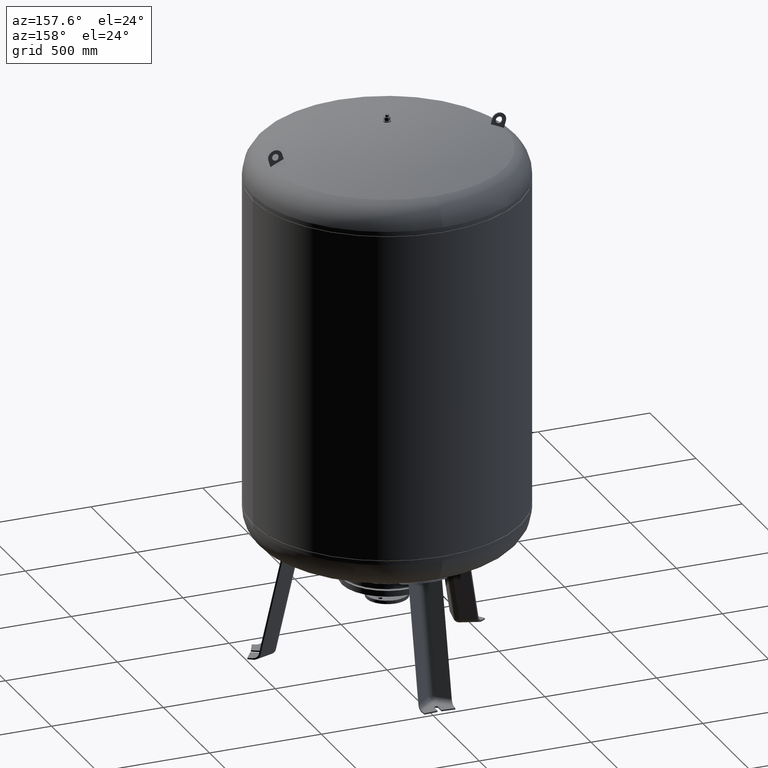
[diagram: clean part render]
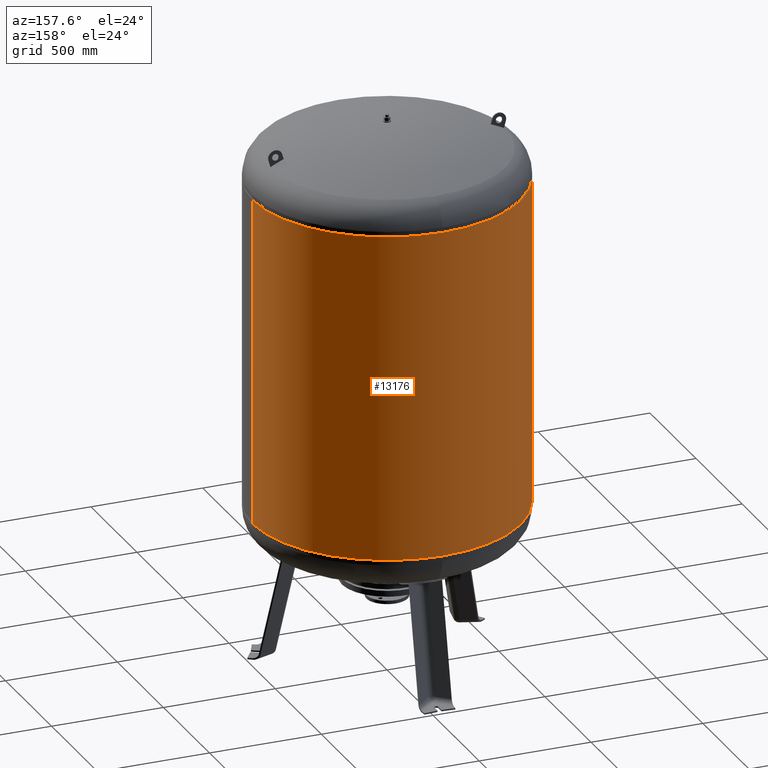
[diagram: same view with one face highlighted and labeled with its STEP entity id]
A machine part, auxiliary view. The second image highlights one B-rep face of the part: STEP entity #13176.
In plain terms, the highlighted cylindrical surface (partial cylindrical patch) has radius 600 mm, axis along (0, 0, 1).
Its self-contained STEP definition (entity closure, byte-faithful):
#12994=CARTESIAN_POINT('',(600.0,0.0,716.999999999999660));
#12995=VERTEX_POINT('',#12994);
#13004=CARTESIAN_POINT('',(-600.000000000000570,-7.347638E-014,716.999999999999550));
#13005=VERTEX_POINT('',#13004);
#13036=CARTESIAN_POINT('',(600.000000000000800,0.0,2181.0));
#13037=VERTEX_POINT('',#13036);
#13038=CARTESIAN_POINT('',(600.000000000000800,0.0,2181.0));
#13039=DIRECTION('',(0.0,0.0,-1.0));
#13040=VECTOR('',#13039,1464.000000000000500);
#13041=LINE('',#13038,#13040);
#13042=EDGE_CURVE('',#13037,#12995,#13041,.T.);
#13044=CARTESIAN_POINT('',(-600.000000000000570,-7.347638E-014,2181.0));
#13045=VERTEX_POINT('',#13044);
#13053=CARTESIAN_POINT('',(-600.000000000000570,-7.347638E-014,2181.0));
#13054=DIRECTION('',(0.0,0.0,-1.0));
#13055=VECTOR('',#13054,1464.000000000000500);
#13056=LINE('',#13053,#13055);
#13057=EDGE_CURVE('',#13045,#13005,#13056,.T.);
#13110=CARTESIAN_POINT('',(1.661891E-014,0.0,2181.0));
#13111=DIRECTION('',(0.0,0.0,1.0));
#13112=DIRECTION('',(1.0,0.0,0.0));
#13113=AXIS2_PLACEMENT_3D('',#13110,#13111,#13112);
#13114=CIRCLE('',#13113,600.000000000000800);
#13115=EDGE_CURVE('',#13037,#13045,#13114,.T.);
#13159=CARTESIAN_POINT('',(8.309455E-015,0.0,1800.0));
#13160=DIRECTION('',(2.301788E-017,0.0,1.0));
#13161=DIRECTION('',(1.0,0.0,0.0));
#13162=AXIS2_PLACEMENT_3D('',#13159,#13160,#13161);
#13163=CYLINDRICAL_SURFACE('',#13162,600.000000000000570);
#13164=ORIENTED_EDGE('',*,*,#13042,.T.);
#13165=CARTESIAN_POINT('',(-1.661891E-014,0.0,716.999999999999550));
#13166=DIRECTION('',(0.0,0.0,1.0));
#13167=DIRECTION('',(1.0,0.0,0.0));
#13168=AXIS2_PLACEMENT_3D('',#13165,#13166,#13167);
#13169=CIRCLE('',#13168,600.0);
#13170=EDGE_CURVE('',#12995,#13005,#13169,.T.);
#13171=ORIENTED_EDGE('',*,*,#13170,.T.);
#13172=ORIENTED_EDGE('',*,*,#13057,.F.);
#13173=ORIENTED_EDGE('',*,*,#13115,.F.);
#13174=EDGE_LOOP('',(#13164,#13171,#13172,#13173));
#13175=FACE_OUTER_BOUND('',#13174,.T.);
#13176=ADVANCED_FACE('',(#13175),#13163,.T.);